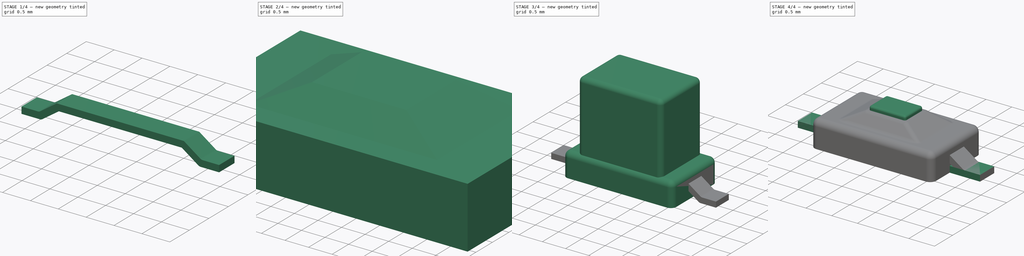
[diagram: build sequence overview — one tinted view per stage of 4, left to right]
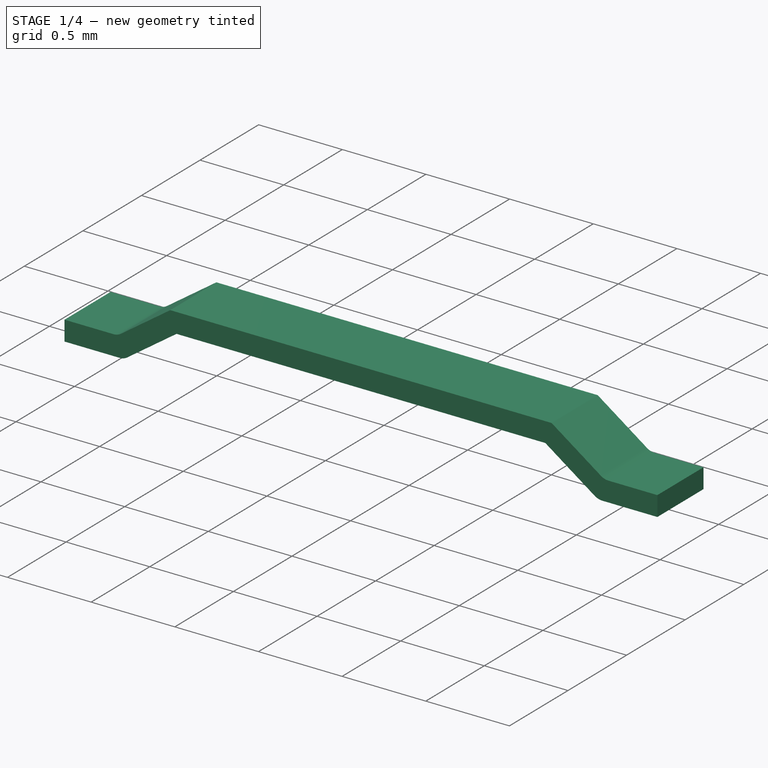
[diagram: stage 1 of 4 — iso view after this stage's code; geometry added in this stage tinted green]
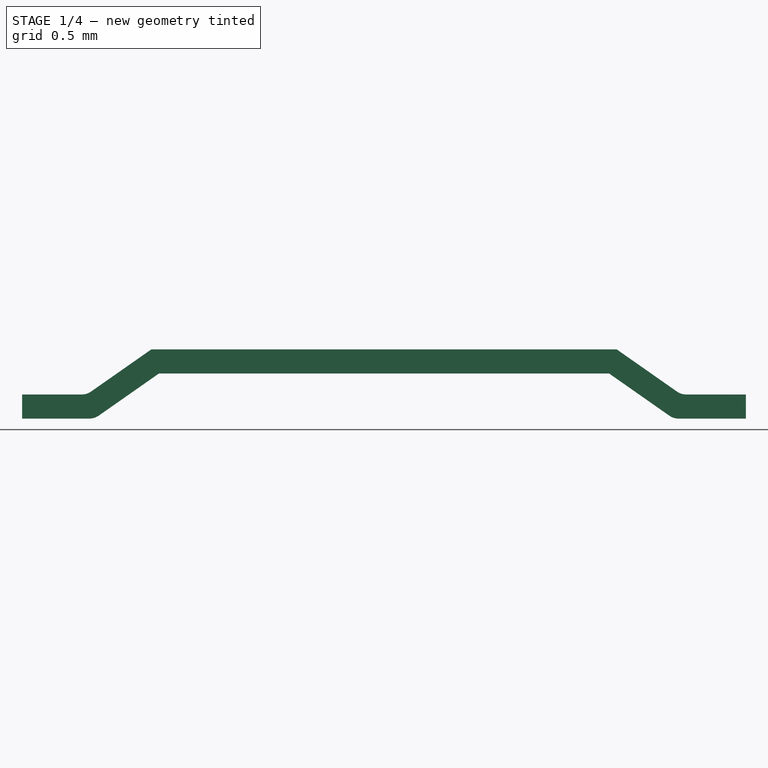
[diagram: stage 1 of 4 — front view after this stage's code; geometry added in this stage tinted green]
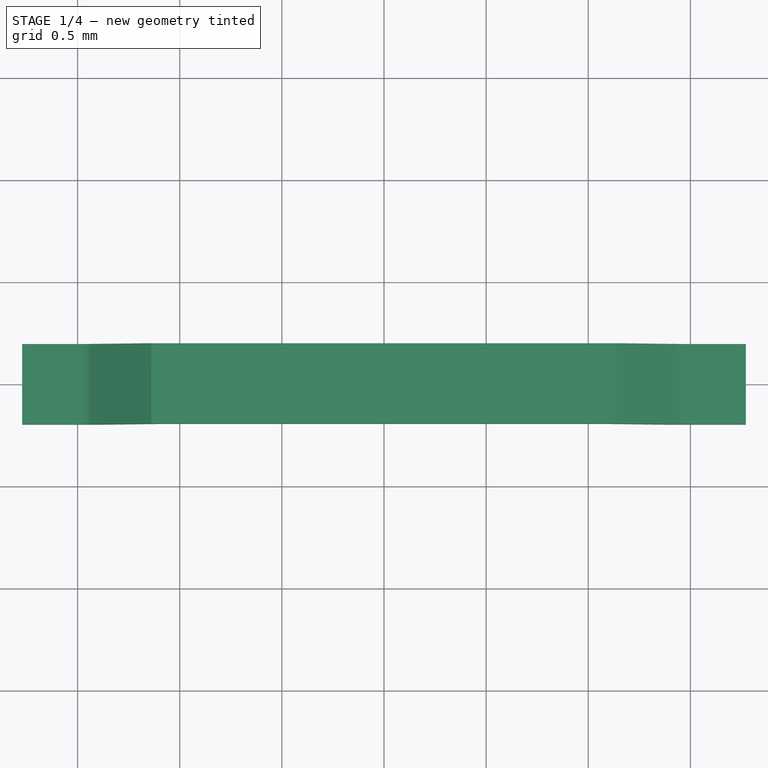
[diagram: stage 1 of 4 — top view after this stage's code; geometry added in this stage tinted green]
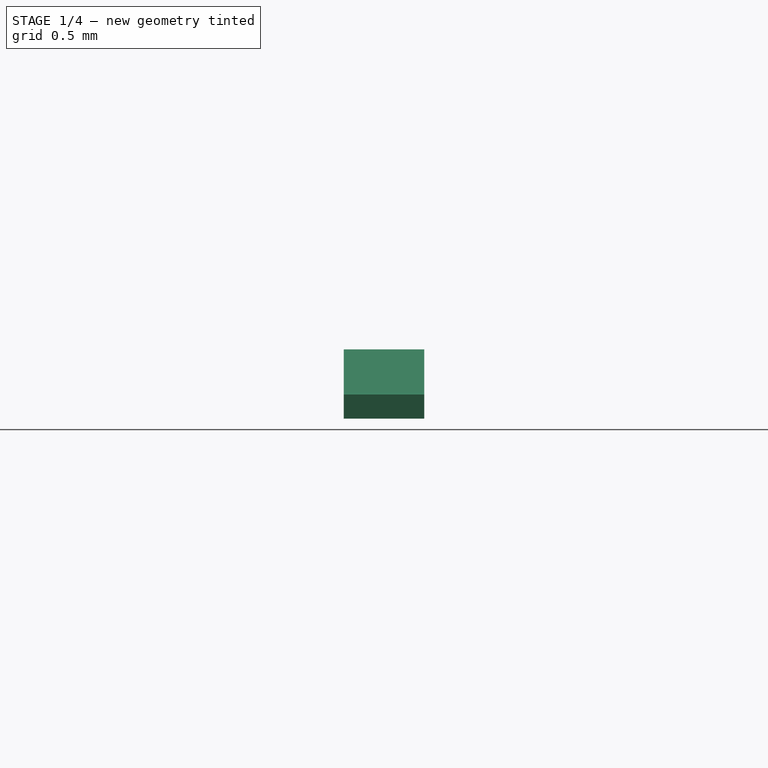
[diagram: stage 1 of 4 — right view after this stage's code; geometry added in this stage tinted green]
FCSTD DOCUMENT  (FreeCAD 0.16R6707 (Git))
Label: SW_SPST_FSMSM
License: CreativeCommons Attribution-ShareAlike
LicenseURL: http://creativecommons.org/licenses/by-sa/4.0/
objects: Part::FeaturePython×4, Part::Box×3, Sketcher::SketchObject×3, PartDesign::Fillet×3, PartDesign::Pocket×2, PartDesign::Pad×1
note: 19 computed .brp shape members not serialized (recipe doc carries the construction recipe); baked Part::Feature solids carry a one-line shape summary decoded from their .brp

FEATURE [Sketcher::SketchObject] Sketch002
  Placement = pos=(0,0,0) rot=(-1,0,0;4.71239rad)
  sketch-geometry (15):
    g0: LineSegment StartX=-4.5 StartY=0 StartZ=0 EndX=-3.6 EndY=0 EndZ=0
    g1: LineSegment StartX=-3.6 StartY=0 StartZ=0 EndX=-2.8 EndY=0.560166 EndZ=0
    g2: LineSegment StartX=-2.8 StartY=0.560166 StartZ=0 EndX=2.8 EndY=0.560166 EndZ=0
    g3: LineSegment StartX=2.8 StartY=0.560166 StartZ=0 EndX=3.6 EndY=0 EndZ=0
    g4: LineSegment StartX=3.6 StartY=0 StartZ=0 EndX=4.5 EndY=0 EndZ=0
    g5: LineSegment StartX=4.5 StartY=0 StartZ=0 EndX=4.5 EndY=0.3 EndZ=0
    g6: LineSegment StartX=4.5 StartY=0.3 StartZ=0 EndX=3.69459 EndY=0.3 EndZ=0
    g7: LineSegment StartX=3.69459 StartY=0.3 StartZ=0 EndX=2.89459 EndY=0.860166 EndZ=0
    g8: LineSegment StartX=2.89459 StartY=0.860166 StartZ=0 EndX=-2.89459 EndY=0.860166 EndZ=0
    g9: LineSegment StartX=-2.89459 StartY=0.860166 StartZ=0 EndX=-3.69459 EndY=0.3 EndZ=0
    g10: LineSegment StartX=-3.69459 StartY=0.3 StartZ=0 EndX=-4.5 EndY=0.3 EndZ=0
    g11: LineSegment StartX=-4.5 StartY=0.3 StartZ=0 EndX=-4.5 EndY=0 EndZ=0
    g12: LineSegment [constr] StartX=3.69459 StartY=0.3 StartZ=0 EndX=3.52252 EndY=0.0542544 EndZ=0
    g13: LineSegment [constr] StartX=2.8 StartY=0.560166 StartZ=0 EndX=2.8 EndY=0.860166 EndZ=0
    g14: LineSegment [constr] StartX=-3.69459 StartY=0.3 StartZ=0 EndX=-3.52252 EndY=0.0542544 EndZ=0
  constraints (44):
    c: Horizontal(g0)
    c: Coincident(g0,g1)
    c: Coincident(g1,g2)
    c: Horizontal(g2)
    c: Coincident(g2,g3)
    c: Coincident(g3,g4)
    c: Horizontal(g4)
    c: Coincident(g4,g5)
    c: Vertical(g5)
    c: Coincident(g5,g6)
    c: Horizontal(g6)
    c: Coincident(g6,g7)
    c: Coincident(g7,g8)
    c: Horizontal(g8)
    c: Coincident(g8,g9)
    c: Coincident(g9,g10)
    c: Horizontal(g10)
    c: Coincident(g10,g11)
    c: Coincident(g11,g0)
    c: Vertical(g11)
    c: Coincident(g12,g6)
    c: PointOnObject(g12,g3)
    c: Perpendicular(g3,g12)
    c: Parallel(g3,g7)
    c: Coincident(g13,g2)
    c: PointOnObject(g13,g8)
    c: Vertical(g13)
    c: Equal(g13,g12)
    c: Equal(g12,g5)
    c: Parallel(g1,g9)
    c: Coincident(g14,g9)
    c: PointOnObject(g14,g1)
    c: Perpendicular(g14,g1)
    c: Equal(g14,g11)
    c: Equal(g11,g13)
    c: Symmetric(g8,g7,g-2)
    c: Symmetric(g0,g3,g-2)
    c: Symmetric(g5,g10,g-2)
    c: DistanceX(g0,g4) = 9
    c: DistanceX(g0,g1) = 0.8
    c: DistanceX(g0,g0) = 0.9
    c: Angle(g1,g0) = 2.53073
    c: DistanceY(g11,g11) = 0.3
    c: PointOnObject(g0,g-1)
FEATURE [PartDesign::Pad] Pad
  Length = 1
  Length2 = 100
  Midplane = true
  Placement = pos=(0,0,0) rot=(-1,0,0;4.71239rad)
  Sketch = -> Sketch002
  Type = 0
FEATURE [PartDesign::Fillet] Fillet002  label="pines"
  Base = -> Pad [Edge29,Edge20,Edge11,Edge2]
  Placement = pos=(0,0,0) rot=(-1,0,0;4.71239rad)
  Radius = 0.2
FEATURE [Part::FeaturePython] Clone003  label="Clone of pines"  # Draft clone (typed FeaturePython)
  Objects = -> [Fillet002]
  Placement = pos=(0,0,0) rot=(-1,0,0;4.71239rad)
  Scale = (0.3937,0.3937,0.3937)
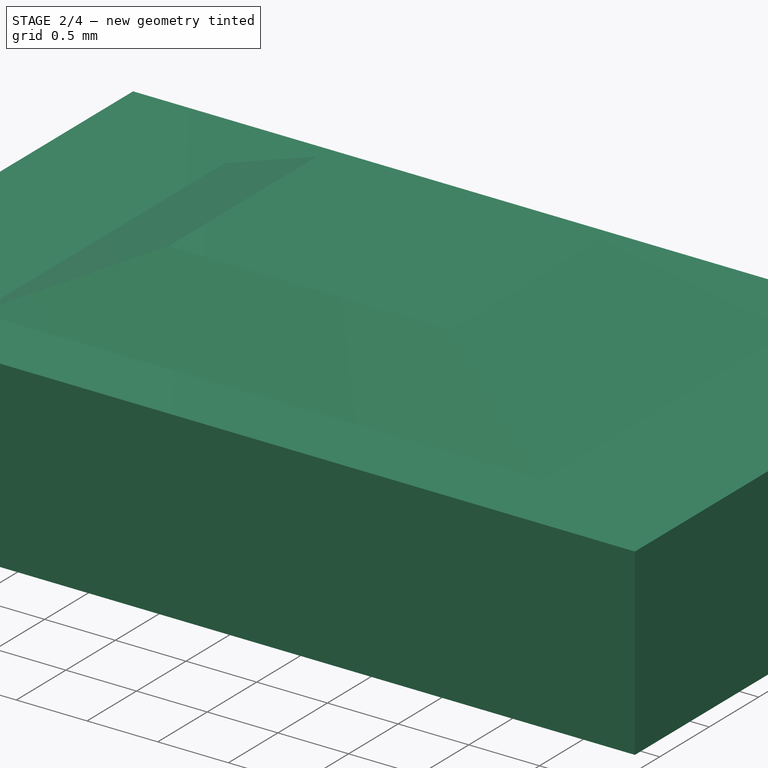
[diagram: stage 2 of 4 — iso view after this stage's code; geometry added in this stage tinted green]
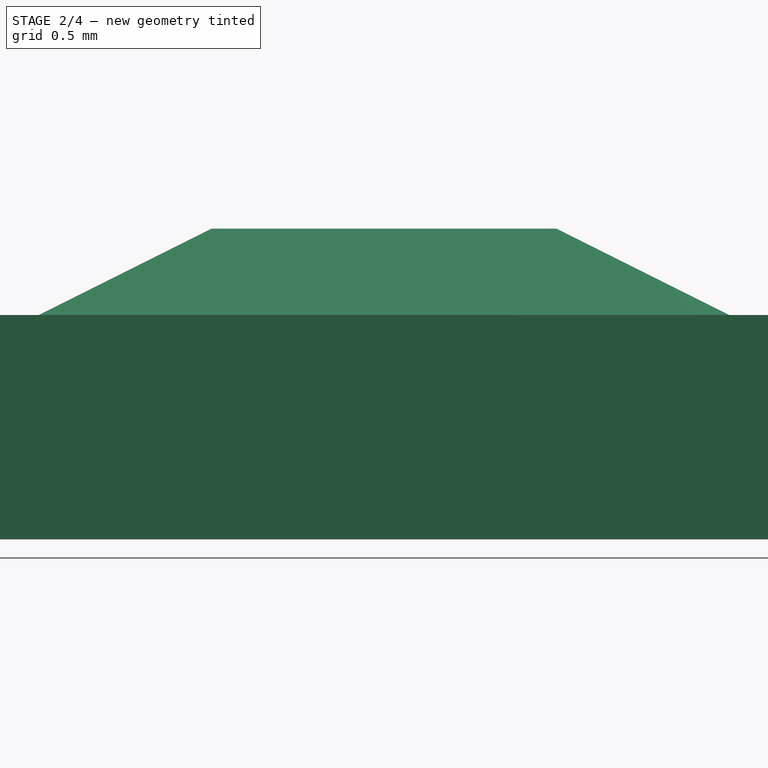
[diagram: stage 2 of 4 — front view after this stage's code; geometry added in this stage tinted green]
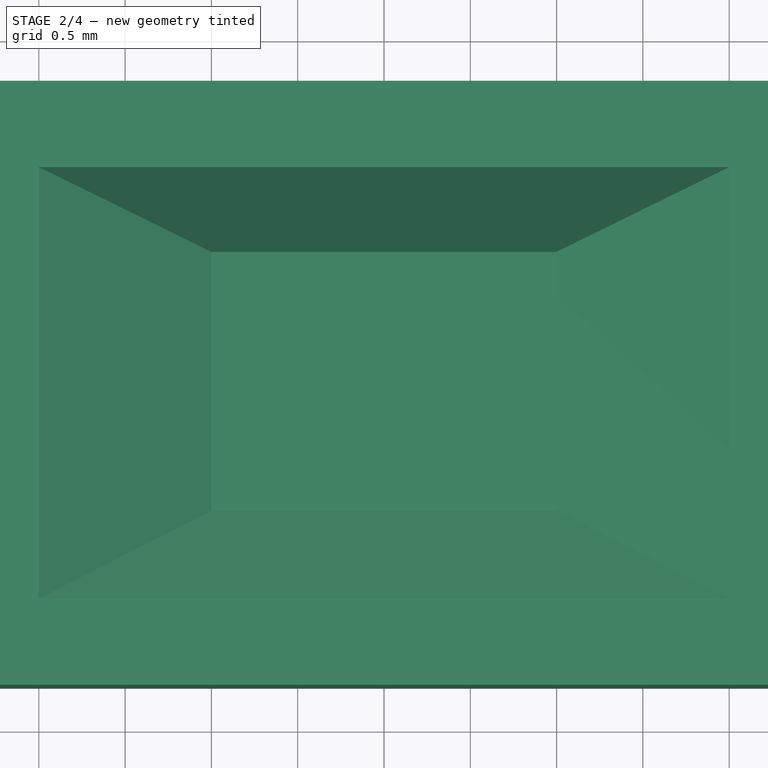
[diagram: stage 2 of 4 — top view after this stage's code; geometry added in this stage tinted green]
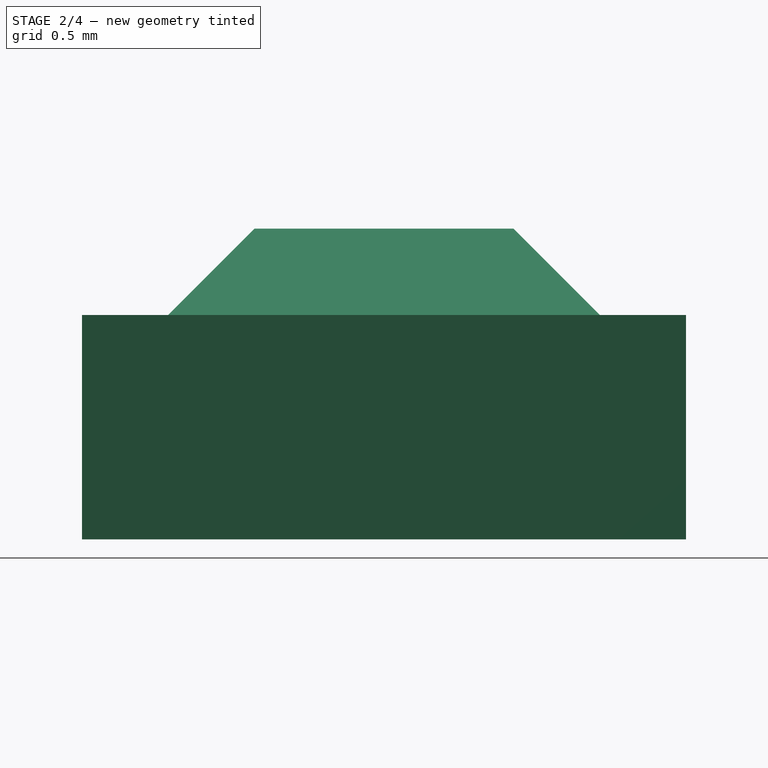
[diagram: stage 2 of 4 — right view after this stage's code; geometry added in this stage tinted green]
FEATURE [Part::Box] Box  label="Cubo"
  Height = 1.8
  Length = 6
  Placement = pos=(-3,-1.75,0) rot=(0,0,1;0rad)
  Width = 3.5
FEATURE [Sketcher::SketchObject] Sketch
  ExternalGeometry = -> [Box]
  Placement = pos=(-3,-1.75,0) rot=(1,0,0;1.5708rad)
  Support = -> Box [Face3]
  sketch-geometry (8):
    g0: LineSegment StartX=0 StartY=1.3 StartZ=0 EndX=1 EndY=1.3 EndZ=0
    g1: LineSegment StartX=1 StartY=1.3 StartZ=0 EndX=2 EndY=1.8 EndZ=0
    g2: LineSegment StartX=2 StartY=1.8 StartZ=0 EndX=4 EndY=1.8 EndZ=0
    g3: LineSegment StartX=4 StartY=1.8 StartZ=0 EndX=5 EndY=1.3 EndZ=0
    g4: LineSegment StartX=5 StartY=1.3 StartZ=0 EndX=6 EndY=1.3 EndZ=0
    g5: LineSegment StartX=6 StartY=1.3 StartZ=0 EndX=6 EndY=3.3 EndZ=0
    g6: LineSegment StartX=6 StartY=3.3 StartZ=0 EndX=0 EndY=3.3 EndZ=0
    g7: LineSegment StartX=0 StartY=3.3 StartZ=0 EndX=0 EndY=1.3 EndZ=0
  constraints (24):
    c: PointOnObject(g0,g-5)
    c: Horizontal(g0)
    c: Coincident(g0,g1)
    c: PointOnObject(g1,g-3)
    c: Coincident(g1,g2)
    c: Horizontal(g2)
    c: Coincident(g2,g3)
    c: Coincident(g3,g4)
    c: PointOnObject(g4,g-4)
    c: Horizontal(g4)
    c: Coincident(g4,g5)
    c: Vertical(g5)
    c: Coincident(g5,g6)
    c: Horizontal(g6)
    c: Coincident(g6,g7)
    c: Coincident(g7,g0)
    c: Vertical(g7)
    c: DistanceY(g-1,g0) = 1.3
    c: DistanceY(g-4,g4) = 1.3
    c: DistanceY(g7,g7) = 2
    c: DistanceX(g0,g0) = 1
    c: DistanceX(g4,g4) = 1
    c: DistanceX(g0,g1) = 1
    c: DistanceX(g2,g3) = 1
FEATURE [PartDesign::Pocket] Pocket
  Length = 5
  Placement = pos=(-3,-1.75,0) rot=(0,0,1;0rad)
  Sketch = -> Sketch
  Type = 1
FEATURE [Sketcher::SketchObject] Sketch001
  ExternalGeometry = -> [Pocket]
  Placement = pos=(3,-1.75,0) rot=(0.57735,0.57735,0.57735;2.0944rad)
  Support = -> Pocket [Face6]
  sketch-geometry (8):
    g0: LineSegment StartX=0 StartY=1.3 StartZ=0 EndX=0.5 EndY=1.3 EndZ=0
    g1: LineSegment StartX=0.5 StartY=1.3 StartZ=0 EndX=1 EndY=1.8 EndZ=0
    g2: LineSegment StartX=1 StartY=1.8 StartZ=0 EndX=2.5 EndY=1.8 EndZ=0
    g3: LineSegment StartX=2.5 StartY=1.8 StartZ=0 EndX=3 EndY=1.3 EndZ=0
    g4: LineSegment StartX=3 StartY=1.3 StartZ=0 EndX=3.5 EndY=1.3 EndZ=0
    g5: LineSegment StartX=3.5 StartY=1.3 StartZ=0 EndX=3.5 EndY=2.3 EndZ=0
    g6: LineSegment StartX=3.5 StartY=2.3 StartZ=0 EndX=0 EndY=2.3 EndZ=0
    g7: LineSegment StartX=0 StartY=2.3 StartZ=0 EndX=0 EndY=1.3 EndZ=0
  constraints (22):
    c: Coincident(g-3,g0)
    c: PointOnObject(g0,g-3)
    c: Coincident(g0,g1)
    c: Coincident(g1,g2)
    c: Horizontal(g2)
    c: Coincident(g2,g3)
    c: PointOnObject(g3,g-3)
    c: Coincident(g3,g4)
    c: Coincident(g4,g-3)
    c: Coincident(g4,g5)
    c: Vertical(g5)
    c: Coincident(g5,g6)
    c: PointOnObject(g6,g-2)
    c: Horizontal(g6)
    c: Coincident(g6,g7)
    c: Coincident(g7,g0)
    c: DistanceY(g5,g5) = 1
    c: DistanceX(g3,g4) = 0.5
    c: DistanceX(g0,g0) = 0.5
    c: DistanceX(g0,g1) = 0.5
    c: DistanceX(g2,g3) = 0.5
    c: DistanceY(g0,g1) = 0.5
FEATURE [PartDesign::Pocket] Pocket001
  Length = 5
  Placement = pos=(-3,-1.75,0) rot=(0,0,1;0rad)
  Sketch = -> Sketch001
  Type = 0
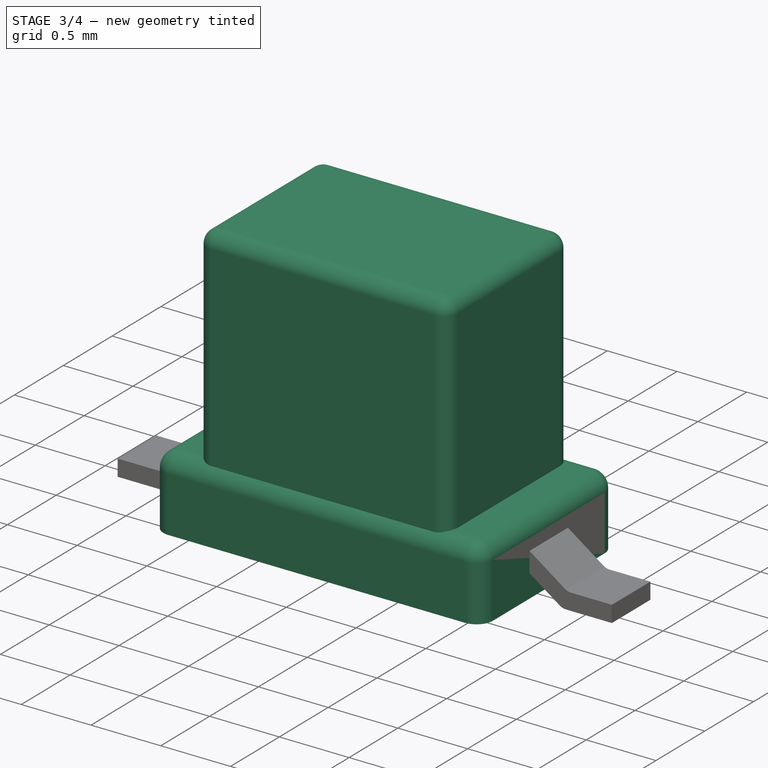
[diagram: stage 3 of 4 — iso view after this stage's code; geometry added in this stage tinted green]
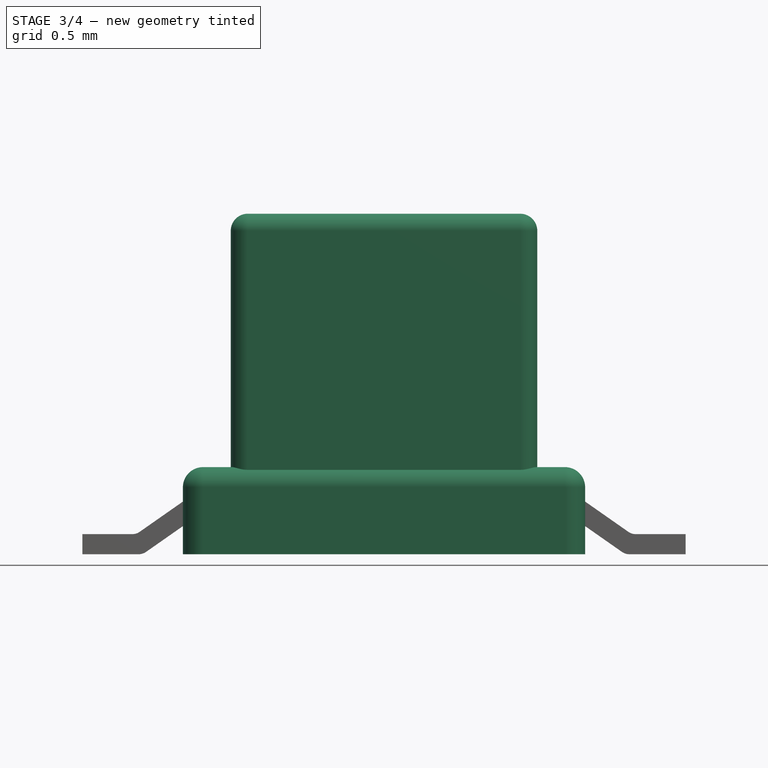
[diagram: stage 3 of 4 — front view after this stage's code; geometry added in this stage tinted green]
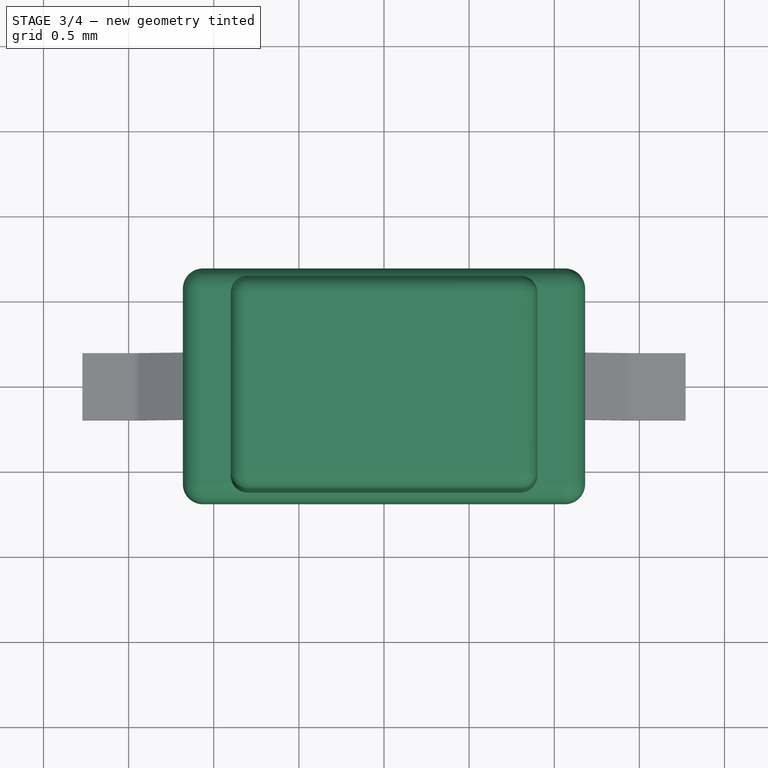
[diagram: stage 3 of 4 — top view after this stage's code; geometry added in this stage tinted green]
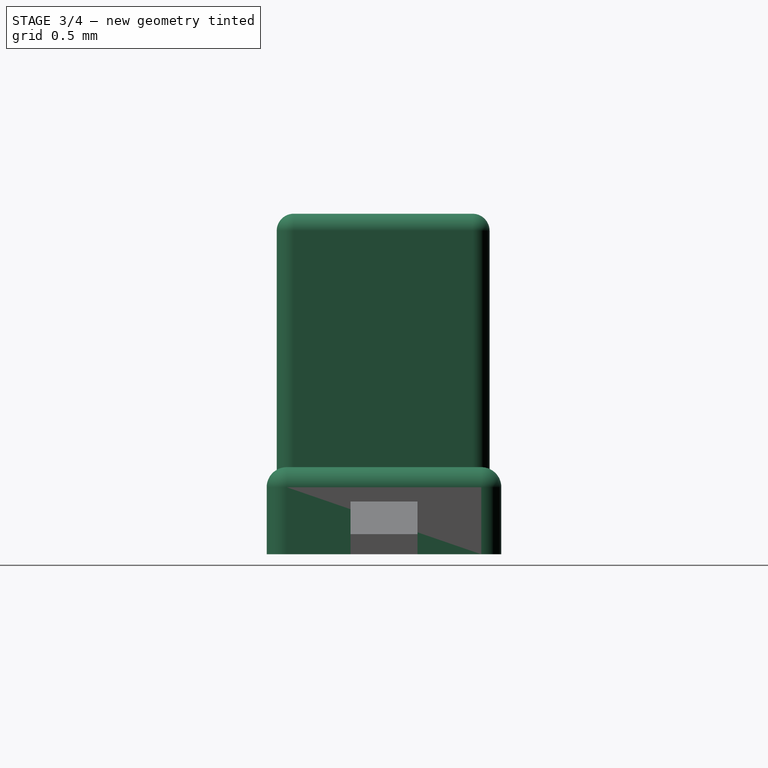
[diagram: stage 3 of 4 — right view after this stage's code; geometry added in this stage tinted green]
FEATURE [PartDesign::Fillet] Fillet  label="cuerpo"
  Base = -> Pocket001 [Edge12,Edge9,Edge2,Edge6,Edge13,Edge16,Edge15,Edge14,Edge24,Edge20,Edge17,Edge19,Edge8,Edge3,Edge5,Edge1,Edge18,Edge22,Edge23,Edge21]
  Placement = pos=(-3,-1.75,0) rot=(0,0,1;0rad)
  Radius = 0.3
FEATURE [Part::Box] Box001  label="Cubo001"
  Height = 2
  Length = 1.8
  Placement = pos=(-0.9,-0.63,0) rot=(0,0,1;0rad)
  Width = 1.25
FEATURE [PartDesign::Fillet] Fillet001  label="boton"
  Base = -> Box001 [Edge10,Edge5,Edge6,Edge1,Edge2,Edge12,Edge7,Edge3]
  Placement = pos=(-0.9,-0.63,0) rot=(0,0,1;0rad)
  Radius = 0.1
FEATURE [Part::FeaturePython] Clone002  label="Clone of cuerpo"  # Draft clone (typed FeaturePython)
  Objects = -> [Fillet]
  Placement = pos=(-3,-1.75,0) rot=(0,0,1;0rad)
  Scale = (0.3937,0.3937,0.3937)
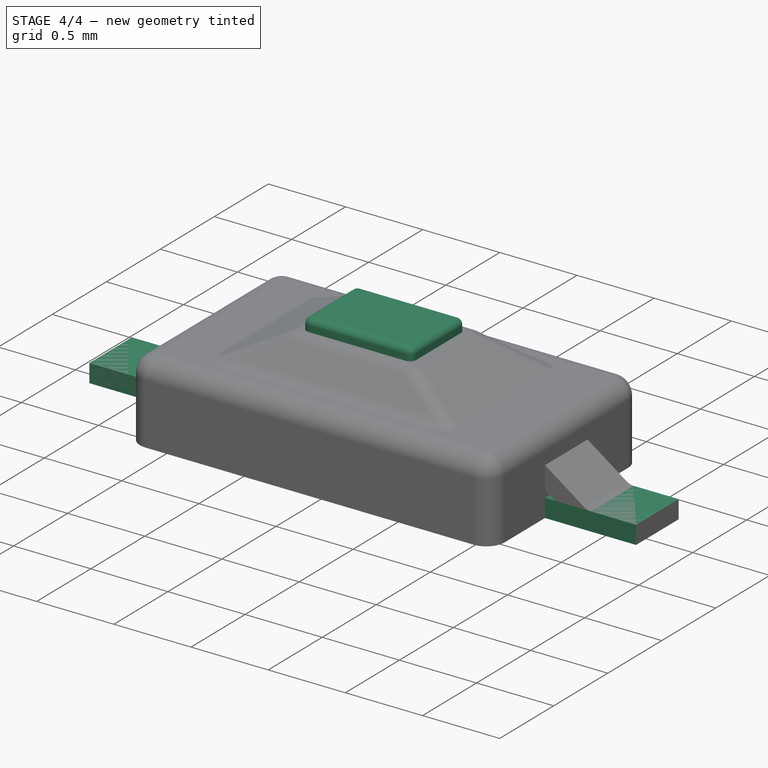
[diagram: stage 4 of 4 — iso view after this stage's code; geometry added in this stage tinted green]
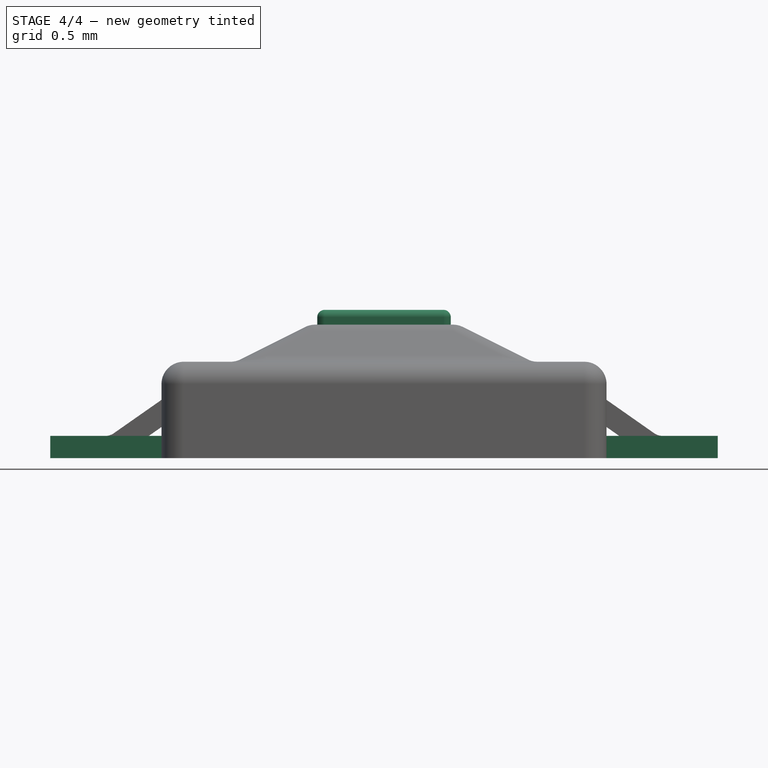
[diagram: stage 4 of 4 — front view after this stage's code; geometry added in this stage tinted green]
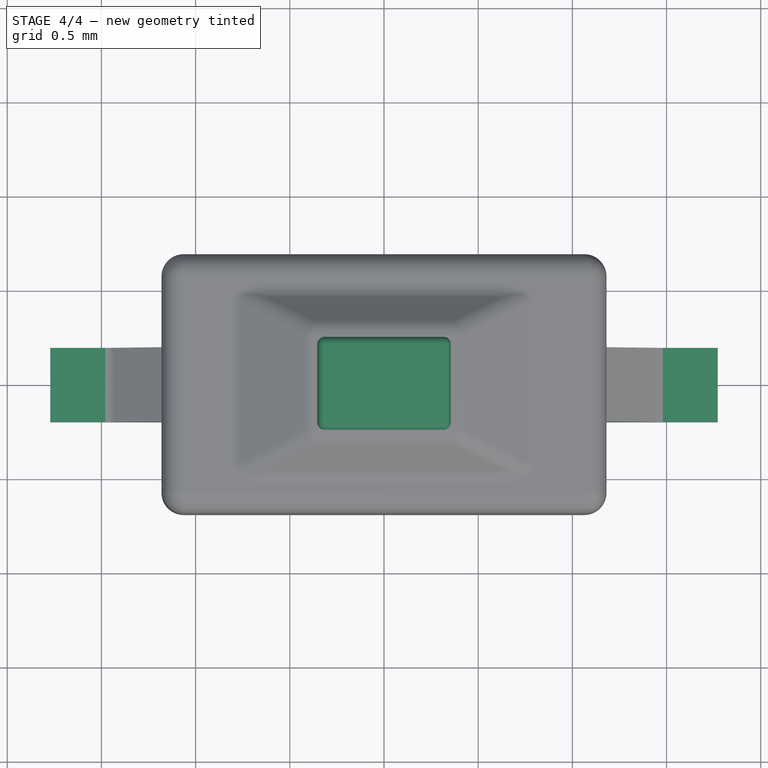
[diagram: stage 4 of 4 — top view after this stage's code; geometry added in this stage tinted green]
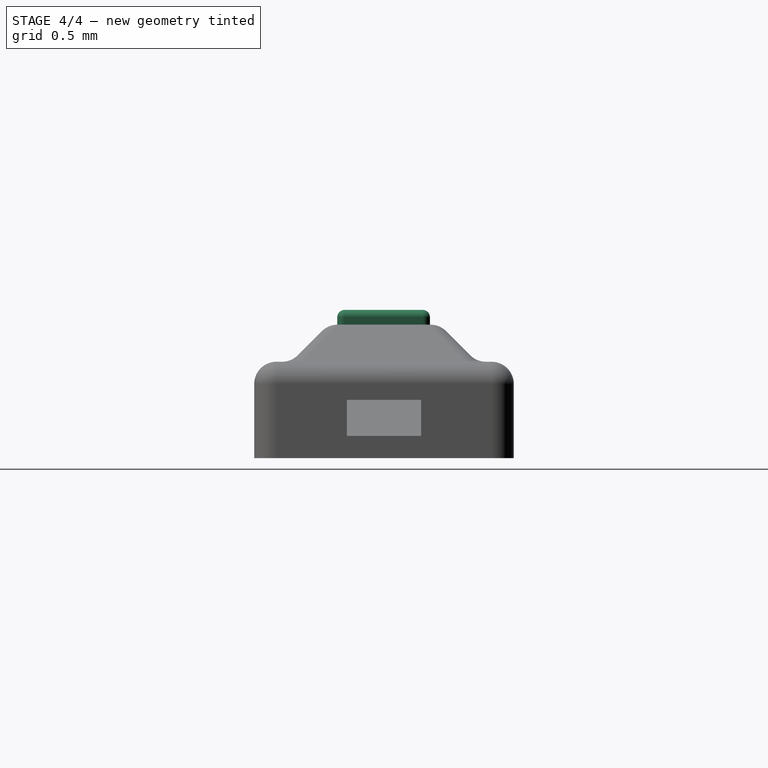
[diagram: stage 4 of 4 — right view after this stage's code; geometry added in this stage tinted green]
FEATURE [Part::Box] Box002  label="pines_llanos"
  Height = 0.3
  Length = 9
  Placement = pos=(-4.5,-0.5,0) rot=(0,0,1;0rad)
  Width = 1
FEATURE [Part::FeaturePython] Clone  label="Clone of Cubo002"  # Draft clone (typed FeaturePython)
  Objects = -> [Box002]
  Placement = pos=(-4.5,-0.5,0) rot=(0,0,1;0rad)
  Scale = (0.3937,0.3937,0.3937)
FEATURE [Part::FeaturePython] Clone001  label="Clone of boton"  # Draft clone (typed FeaturePython)
  Objects = -> [Fillet001]
  Placement = pos=(-0.9,-0.63,0) rot=(0,0,1;0rad)
  Scale = (0.3937,0.3937,0.3937)
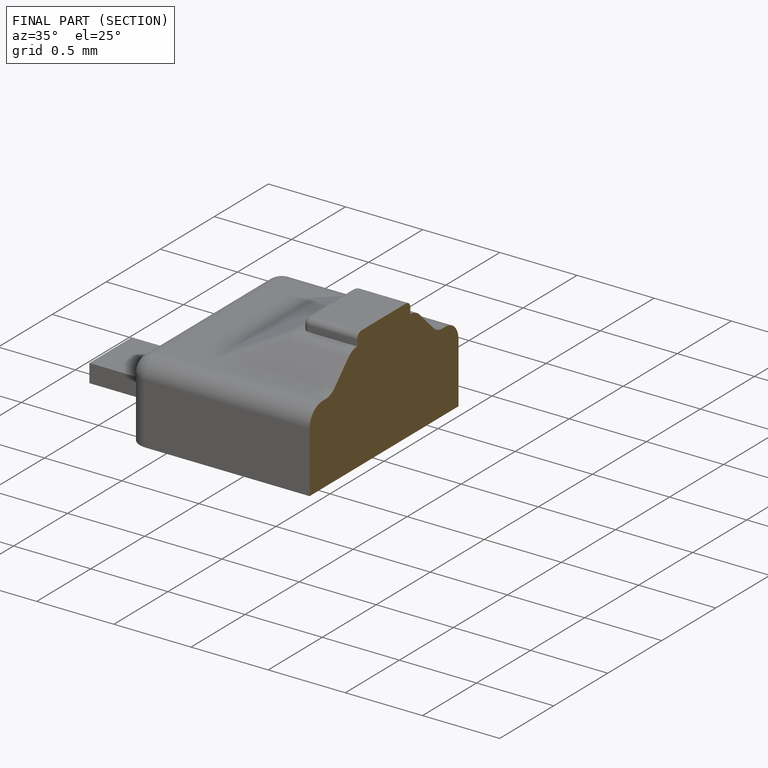
[diagram: finished part — half-section view (interior)]
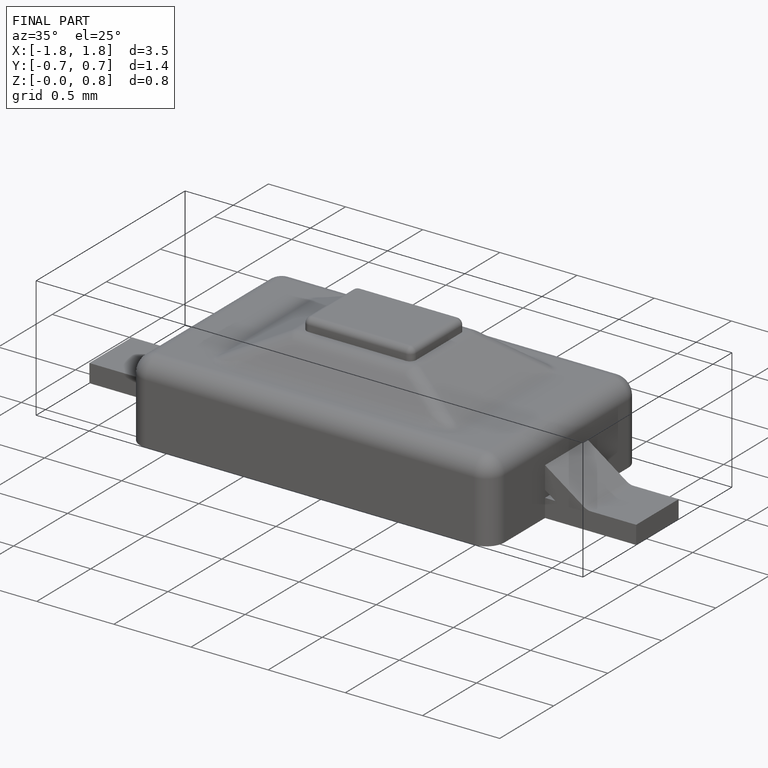
[diagram: finished part — iso view with bounding-box wireframe]
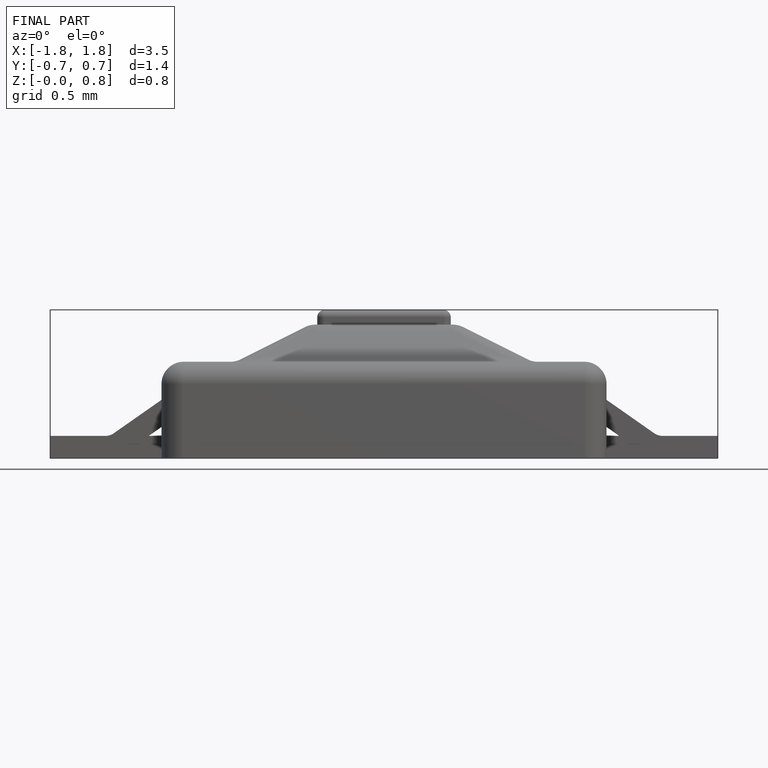
[diagram: finished part — front view with bounding-box wireframe]
